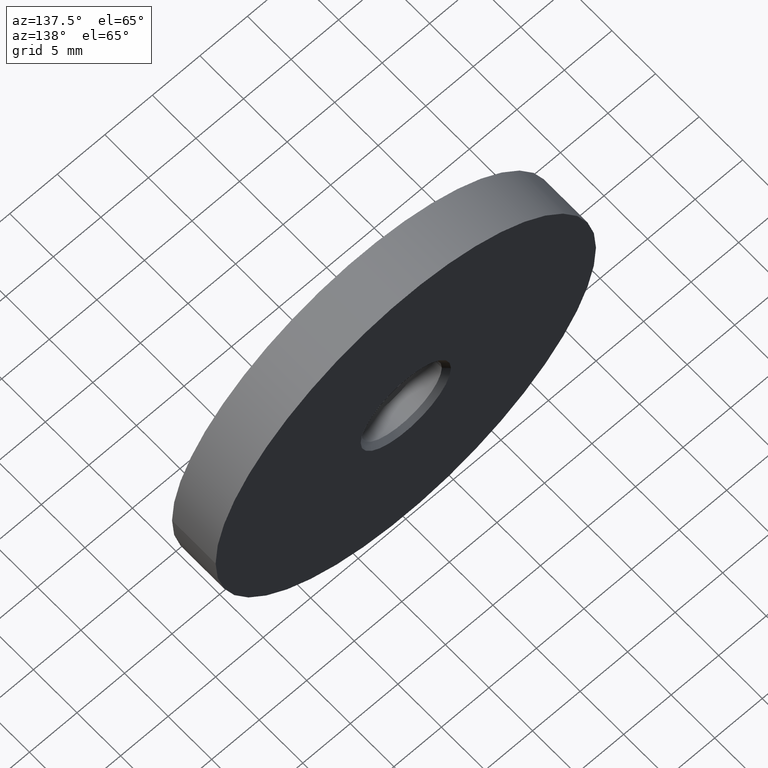
[diagram: clean part render]
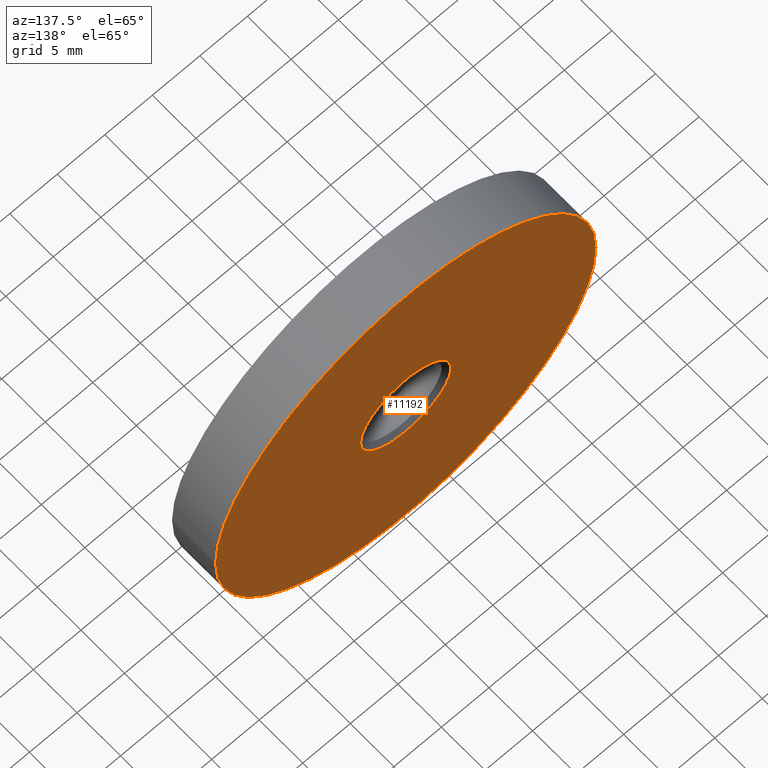
[diagram: same view with one face highlighted and labeled with its STEP entity id]
A machine part, auxiliary view. The second image highlights one B-rep face of the part: STEP entity #11192.
In plain terms, the highlighted planar face has unit normal (0, 1, -0).
Its self-contained STEP definition (entity closure, byte-faithful):
#48 = VERTEX_POINT ( 'NONE', #9935 ) ;
#183 = AXIS2_PLACEMENT_3D ( 'NONE', #14868, #1142, #3527 ) ;
#272 = AXIS2_PLACEMENT_3D ( 'NONE', #14635, #1970, #7773 ) ;
#374 = DIRECTION ( 'NONE',  ( -1.000000000000000000, 1.387778780781444887E-15, 0.000000000000000000 ) ) ;
#422 = DIRECTION ( 'NONE',  ( 1.387778780781446464E-15, 1.000000000000000000, -0.000000000000000000 ) ) ;
#431 = EDGE_CURVE ( 'NONE', #12771, #11239, #8697, .T. ) ;
#485 = AXIS2_PLACEMENT_3D ( 'NONE', #7285, #422, #374 ) ;
#697 = CIRCLE ( 'NONE', #272, 4.750000000000007994 ) ;
#717 = CARTESIAN_POINT ( 'NONE',  ( 4.750000000000014211, 4.999999999999984013, 5.817072295949937287E-16 ) ) ;
#920 = ORIENTED_EDGE ( 'NONE', *, *, #3933, .T. ) ;
#1142 = DIRECTION ( 'NONE',  ( 1.387778780781446464E-15, 1.000000000000000000, -0.000000000000000000 ) ) ;
#1824 = CARTESIAN_POINT ( 'NONE',  ( 6.938893903907218911E-15, 4.999999999999990230, 0.000000000000000000 ) ) ;
#1938 = FACE_OUTER_BOUND ( 'NONE', #12978, .T. ) ;
#1970 = DIRECTION ( 'NONE',  ( 1.387778780781446464E-15, 1.000000000000000000, -0.000000000000000000 ) ) ;
#3403 = AXIS2_PLACEMENT_3D ( 'NONE', #1824, #14288, #13101 ) ;
#3527 = DIRECTION ( 'NONE',  ( -1.000000000000000000, 1.387778780781446464E-15, 0.000000000000000000 ) ) ;
#3933 = EDGE_CURVE ( 'NONE', #48, #9611, #12295, .T. ) ;
#4268 = AXIS2_PLACEMENT_3D ( 'NONE', #4927, #10825, #8541 ) ;
#4444 = CARTESIAN_POINT ( 'NONE',  ( -4.750000000000000888, 4.999999999999997335, 0.000000000000000000 ) ) ;
#4927 = CARTESIAN_POINT ( 'NONE',  ( 6.938893903907189723E-15, 4.999999999999969802, 0.000000000000000000 ) ) ;
#5860 = ORIENTED_EDGE ( 'NONE', *, *, #431, .F. ) ;
#7285 = CARTESIAN_POINT ( 'NONE',  ( 6.938893903907189723E-15, 4.999999999999969802, 0.000000000000000000 ) ) ;
#7773 = DIRECTION ( 'NONE',  ( -1.000000000000000000, 1.460819769243624567E-15, 0.000000000000000000 ) ) ;
#7958 = PLANE ( 'NONE',  #183 ) ;
#8541 = DIRECTION ( 'NONE',  ( -1.000000000000000000, 1.387778780781444887E-15, 0.000000000000000000 ) ) ;
#8596 = EDGE_CURVE ( 'NONE', #11239, #12771, #697, .T. ) ;
#8697 = CIRCLE ( 'NONE', #3403, 4.750000000000007994 ) ;
#9611 = VERTEX_POINT ( 'NONE', #13405 ) ;
#9836 = EDGE_LOOP ( 'NONE', ( #12028, #5860 ) ) ;
#9935 = CARTESIAN_POINT ( 'NONE',  ( -20.00000000000000355, 4.999999999999997335, 0.000000000000000000 ) ) ;
#10825 = DIRECTION ( 'NONE',  ( 1.387778780781446464E-15, 1.000000000000000000, -0.000000000000000000 ) ) ;
#10921 = FACE_BOUND ( 'NONE', #9836, .T. ) ;
#11192 = ADVANCED_FACE ( 'NONE', ( #1938, #10921 ), #7958, .T. ) ;
#11239 = VERTEX_POINT ( 'NONE', #4444 ) ;
#11426 = EDGE_CURVE ( 'NONE', #9611, #48, #14104, .T. ) ;
#12028 = ORIENTED_EDGE ( 'NONE', *, *, #8596, .F. ) ;
#12295 = CIRCLE ( 'NONE', #485, 20.00000000000001066 ) ;
#12771 = VERTEX_POINT ( 'NONE', #717 ) ;
#12978 = EDGE_LOOP ( 'NONE', ( #920, #13386 ) ) ;
#13101 = DIRECTION ( 'NONE',  ( -1.000000000000000000, 1.460819769243624567E-15, 0.000000000000000000 ) ) ;
#13386 = ORIENTED_EDGE ( 'NONE', *, *, #11426, .T. ) ;
#13405 = CARTESIAN_POINT ( 'NONE',  ( 20.00000000000001776, 4.999999999999942268, 2.449293598294708091E-15 ) ) ;
#14104 = CIRCLE ( 'NONE', #4268, 20.00000000000001066 ) ;
#14288 = DIRECTION ( 'NONE',  ( 1.387778780781446464E-15, 1.000000000000000000, -0.000000000000000000 ) ) ;
#14635 = CARTESIAN_POINT ( 'NONE',  ( 6.938893903907218911E-15, 4.999999999999990230, 0.000000000000000000 ) ) ;
#14868 = CARTESIAN_POINT ( 'NONE',  ( -20.00000000000000355, 5.000000000000007994, 0.000000000000000000 ) ) ;